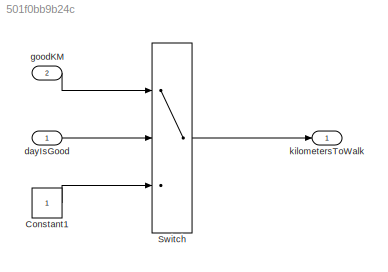
MODEL slx_501f0bb9b24c
KIND model
CONFIG AbsTol = auto
CONFIG EnableMultiTasking = off
CONFIG FixedStep = auto
CONFIG MaxStep = auto
CONFIG MinStep = auto
CONFIG RelTol = 1e-3
CONFIG SampleTimeConstraint = Unconstrained
CONFIG Solver = FixedStepAuto
CONFIG SolverName = FixedStepAuto
CONFIG StartTime = 0.0
CONFIG StopTime = 100
BLOCK [Constant] Constant1
BLOCK [Switch] Switch
  Criteria = u2 ~= 0
  InputSameDT = off
  SaturateOnIntegerOverflow = off
BLOCK [Inport] dayIsGood
  IconDisplay = Port number
  OutDataTypeStr = double
BLOCK [Inport] goodKM
  IconDisplay = Port number
  OutDataTypeStr = double
  Port = 2
BLOCK [Outport] kilometersToWalk
  IconDisplay = Port number
LINE Constant1:1 -> Switch:3
LINE Switch:1 -> kilometersToWalk:1
LINE dayIsGood:1 -> Switch:2
LINE goodKM:1 -> Switch:1
